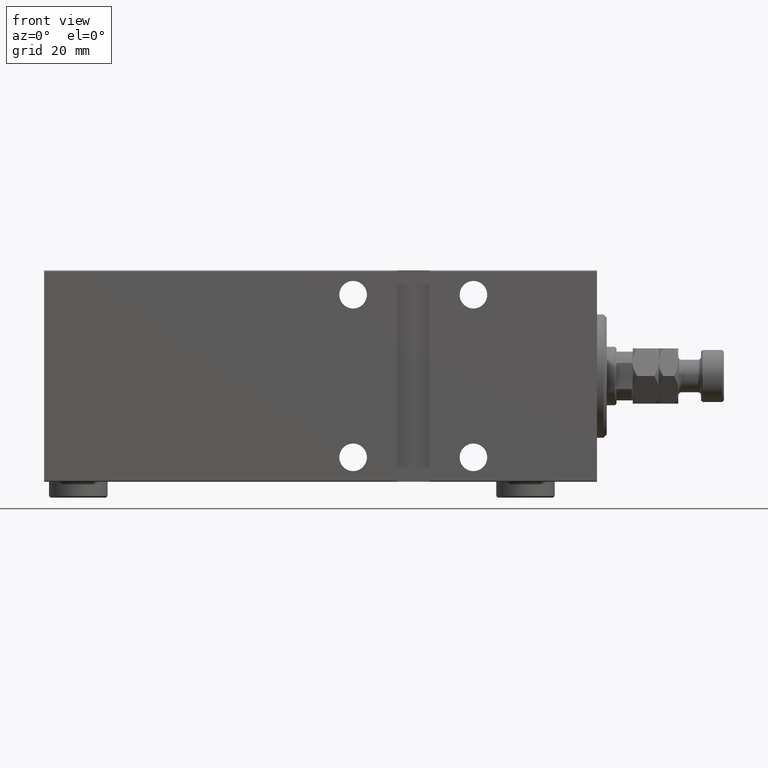
[diagram: clean part render]
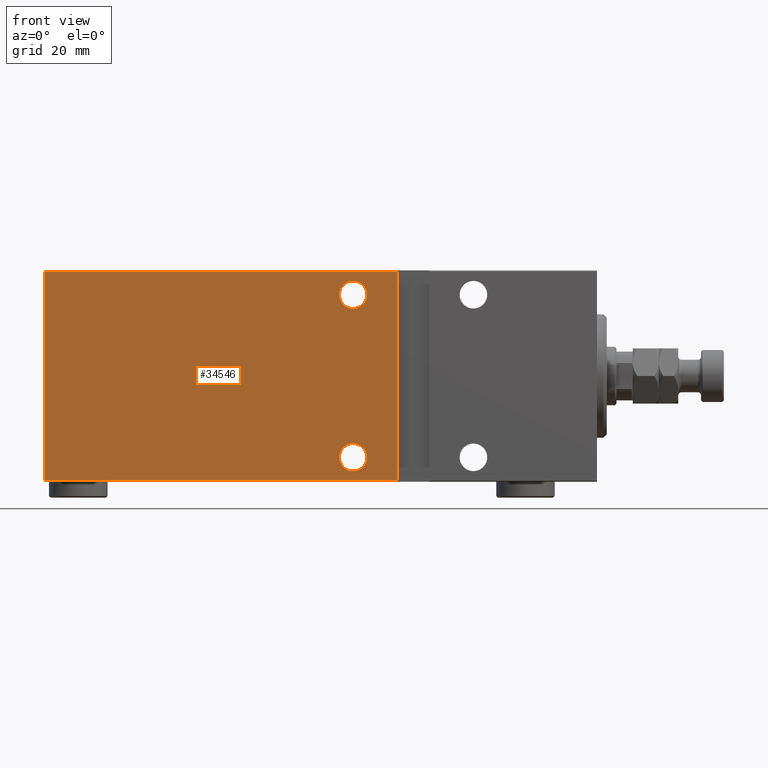
[diagram: same view with one face highlighted and labeled with its STEP entity id]
A machine part, front view. The second image highlights one B-rep face of the part: STEP entity #34546.
In plain terms, the highlighted planar face has unit normal (-0, 1, -0).
Its self-contained STEP definition (entity closure, byte-faithful):
#1151 = CARTESIAN_POINT ( 'NONE',  ( 170.0000000000000000, 22.49999999999999645, 32.19999999999998153 ) ) ;
#1849 = EDGE_CURVE ( 'NONE', #4735, #4105, #21454, .T. ) ;
#1904 = AXIS2_PLACEMENT_3D ( 'NONE', #18990, #44225, #15500 ) ;
#2196 = EDGE_LOOP ( 'NONE', ( #14382, #3183 ) ) ;
#2315 = AXIS2_PLACEMENT_3D ( 'NONE', #5605, #19823, #30573 ) ;
#3027 = DIRECTION ( 'NONE',  ( -2.135044278125300850E-16, 0.000000000000000000, -1.000000000000000000 ) ) ;
#3183 = ORIENTED_EDGE ( 'NONE', *, *, #1849, .F. ) ;
#3354 = EDGE_LOOP ( 'NONE', ( #8279, #6923, #43688, #26709 ) ) ;
#4105 = VERTEX_POINT ( 'NONE', #13588 ) ;
#4132 = VERTEX_POINT ( 'NONE', #4677 ) ;
#4677 = CARTESIAN_POINT ( 'NONE',  ( 61.49999999999999289, 22.50000000000000000, -32.19999999999998153 ) ) ;
#4735 = VERTEX_POINT ( 'NONE', #20342 ) ;
#4787 = DIRECTION ( 'NONE',  ( 0.000000000000000000, 1.000000000000000000, 0.000000000000000000 ) ) ;
#4989 = FACE_BOUND ( 'NONE', #2196, .T. ) ;
#5605 = CARTESIAN_POINT ( 'NONE',  ( 75.00000000000001421, 22.50000000000001776, 25.00000000000000000 ) ) ;
#5768 = CARTESIAN_POINT ( 'NONE',  ( 75.00000000000001421, 22.50000000000001776, -25.00000000000000000 ) ) ;
#6550 = CARTESIAN_POINT ( 'NONE',  ( 170.0000000000000000, 22.50000000000000355, -32.19999999999998153 ) ) ;
#6923 = ORIENTED_EDGE ( 'NONE', *, *, #39081, .T. ) ;
#7186 = EDGE_CURVE ( 'NONE', #41438, #7609, #42367, .T. ) ;
#7609 = VERTEX_POINT ( 'NONE', #12201 ) ;
#8266 = DIRECTION ( 'NONE',  ( 0.000000000000000000, -1.000000000000000000, -1.067522139062650425E-16 ) ) ;
#8279 = ORIENTED_EDGE ( 'NONE', *, *, #7186, .F. ) ;
#9582 = LINE ( 'NONE', #6550, #42172 ) ;
#10256 = CARTESIAN_POINT ( 'NONE',  ( 61.50000000000000711, 22.50000000000000000, 32.50000000000000000 ) ) ;
#10524 = VERTEX_POINT ( 'NONE', #36535 ) ;
#11272 = EDGE_CURVE ( 'NONE', #4105, #4735, #29149, .T. ) ;
#11761 = AXIS2_PLACEMENT_3D ( 'NONE', #5768, #31223, #38475 ) ;
#12201 = CARTESIAN_POINT ( 'NONE',  ( 170.0000000000000000, 22.49999999999999645, 32.19999999999998153 ) ) ;
#13588 = CARTESIAN_POINT ( 'NONE',  ( 75.00000000000001421, 22.50000000000001776, -20.74999999999999645 ) ) ;
#14231 = AXIS2_PLACEMENT_3D ( 'NONE', #22288, #4787, #18787 ) ;
#14382 = ORIENTED_EDGE ( 'NONE', *, *, #11272, .F. ) ;
#14538 = DIRECTION ( 'NONE',  ( 0.000000000000000000, -1.067522139062650425E-16, 1.000000000000000000 ) ) ;
#15123 = ORIENTED_EDGE ( 'NONE', *, *, #15613, .F. ) ;
#15500 = DIRECTION ( 'NONE',  ( 0.000000000000000000, 0.000000000000000000, 1.000000000000000000 ) ) ;
#15613 = EDGE_CURVE ( 'NONE', #10524, #25267, #33643, .T. ) ;
#15907 = VERTEX_POINT ( 'NONE', #30890 ) ;
#16130 = CARTESIAN_POINT ( 'NONE',  ( 75.00000000000001421, 22.50000000000001776, 20.74999999999999645 ) ) ;
#16944 = VECTOR ( 'NONE', #3027, 1000.000000000000000 ) ;
#18787 = DIRECTION ( 'NONE',  ( 0.000000000000000000, 0.000000000000000000, 1.000000000000000000 ) ) ;
#18990 = CARTESIAN_POINT ( 'NONE',  ( 75.00000000000001421, 22.50000000000001776, 25.00000000000000000 ) ) ;
#19213 = PLANE ( 'NONE',  #43518 ) ;
#19823 = DIRECTION ( 'NONE',  ( 0.000000000000000000, 1.000000000000000000, 0.000000000000000000 ) ) ;
#20342 = CARTESIAN_POINT ( 'NONE',  ( 75.00000000000001421, 22.50000000000001776, -29.25000000000000355 ) ) ;
#21454 = CIRCLE ( 'NONE', #11761, 4.250000000000003553 ) ;
#21930 = DIRECTION ( 'NONE',  ( 1.000000000000000000, 0.000000000000000000, 0.000000000000000000 ) ) ;
#22288 = CARTESIAN_POINT ( 'NONE',  ( 75.00000000000001421, 22.50000000000001776, -25.00000000000000000 ) ) ;
#24258 = LINE ( 'NONE', #10256, #16944 ) ;
#25267 = VERTEX_POINT ( 'NONE', #16130 ) ;
#26709 = ORIENTED_EDGE ( 'NONE', *, *, #33784, .T. ) ;
#26907 = FACE_BOUND ( 'NONE', #28116, .T. ) ;
#28116 = EDGE_LOOP ( 'NONE', ( #15123, #45000 ) ) ;
#29149 = CIRCLE ( 'NONE', #14231, 4.250000000000003553 ) ;
#29499 = CIRCLE ( 'NONE', #1904, 4.250000000000003553 ) ;
#30407 = CARTESIAN_POINT ( 'NONE',  ( 170.0000000000000000, 22.50000000000000355, -32.19999999999998153 ) ) ;
#30573 = DIRECTION ( 'NONE',  ( 0.000000000000000000, 0.000000000000000000, 1.000000000000000000 ) ) ;
#30890 = CARTESIAN_POINT ( 'NONE',  ( 61.50000000000000711, 22.50000000000000000, 32.19999999999998153 ) ) ;
#31223 = DIRECTION ( 'NONE',  ( 0.000000000000000000, 1.000000000000000000, 0.000000000000000000 ) ) ;
#33643 = CIRCLE ( 'NONE', #2315, 4.250000000000003553 ) ;
#33784 = EDGE_CURVE ( 'NONE', #15907, #7609, #39692, .T. ) ;
#33941 = FACE_OUTER_BOUND ( 'NONE', #3354, .T. ) ;
#34546 = ADVANCED_FACE ( 'NONE', ( #4989, #26907, #33941 ), #19213, .F. ) ;
#36535 = CARTESIAN_POINT ( 'NONE',  ( 75.00000000000001421, 22.50000000000001776, 29.25000000000000355 ) ) ;
#38475 = DIRECTION ( 'NONE',  ( 0.000000000000000000, 0.000000000000000000, 1.000000000000000000 ) ) ;
#39079 = CARTESIAN_POINT ( 'NONE',  ( 170.0000000000000000, 22.50000000000000355, -32.50000000000000000 ) ) ;
#39081 = EDGE_CURVE ( 'NONE', #41438, #4132, #9582, .T. ) ;
#39692 = LINE ( 'NONE', #1151, #41244 ) ;
#40505 = EDGE_CURVE ( 'NONE', #25267, #10524, #29499, .T. ) ;
#40713 = CARTESIAN_POINT ( 'NONE',  ( 170.0000000000000000, 22.50000000000000355, -32.50000000000000000 ) ) ;
#41168 = DIRECTION ( 'NONE',  ( 0.000000000000000000, 1.067522139062650425E-16, -1.000000000000000000 ) ) ;
#41244 = VECTOR ( 'NONE', #21930, 1000.000000000000000 ) ;
#41438 = VERTEX_POINT ( 'NONE', #30407 ) ;
#41737 = VECTOR ( 'NONE', #14538, 1000.000000000000000 ) ;
#42172 = VECTOR ( 'NONE', #44838, 1000.000000000000000 ) ;
#42367 = LINE ( 'NONE', #39079, #41737 ) ;
#43518 = AXIS2_PLACEMENT_3D ( 'NONE', #40713, #8266, #41168 ) ;
#43688 = ORIENTED_EDGE ( 'NONE', *, *, #44456, .F. ) ;
#44225 = DIRECTION ( 'NONE',  ( 0.000000000000000000, 1.000000000000000000, 0.000000000000000000 ) ) ;
#44456 = EDGE_CURVE ( 'NONE', #15907, #4132, #24258, .T. ) ;
#44838 = DIRECTION ( 'NONE',  ( -1.000000000000000000, 0.000000000000000000, 0.000000000000000000 ) ) ;
#45000 = ORIENTED_EDGE ( 'NONE', *, *, #40505, .F. ) ;